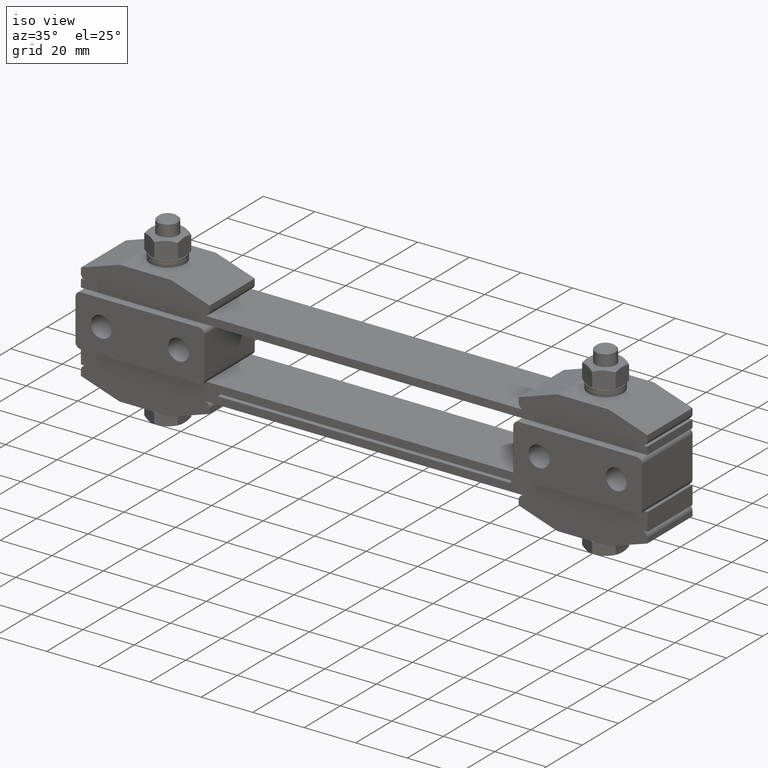
[diagram: clean part render]
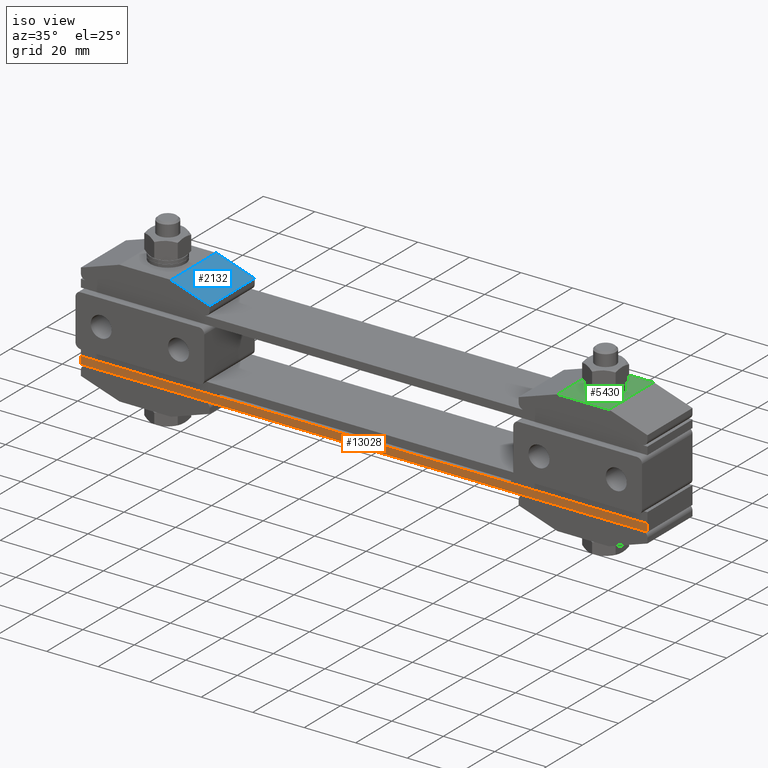
[diagram: same view with three faces highlighted in distinct colors, each labeled with its STEP entity id]
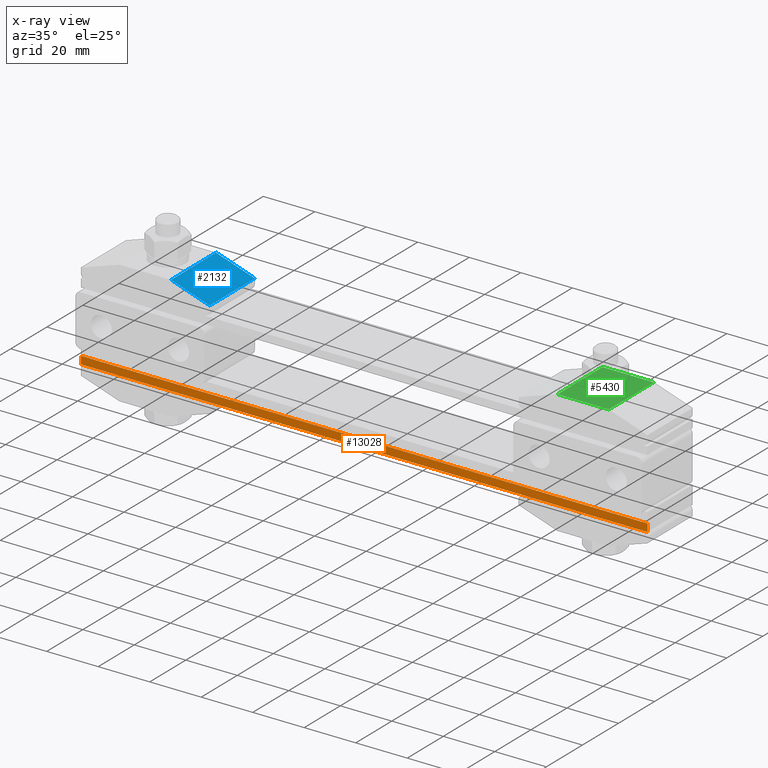
[diagram: x-ray of the same camera — body ghosted, the three highlighted faces saturated]
A machine part, iso view with three faces highlighted in distinct colors.
The next image is the same camera in x-ray (body ghosted, the three faces saturated) — at least one of them is partly hidden behind the body in this view.
Their STEP definitions:

[orange] entity #13028 — the highlighted planar face has unit normal (0, 1, 0).
#28 = EDGE_CURVE ( 'NONE', #342, #13408, #14852, .T. ) ;
#342 = VERTEX_POINT ( 'NONE', #9431 ) ;
#737 = FACE_OUTER_BOUND ( 'NONE', #19095, .T. ) ;
#5705 = DIRECTION ( 'NONE',  ( 1.000000000000000000, 0.0000000000000000000, 0.0000000000000000000 ) ) ;
#6247 = CARTESIAN_POINT ( 'NONE',  ( -110.0000000000000000, -12.50000000000000000, -1.000000000000000000 ) ) ;
#6395 = LINE ( 'NONE', #12294, #20217 ) ;
#7238 = DIRECTION ( 'NONE',  ( 0.0000000000000000000, 0.0000000000000000000, -1.000000000000000000 ) ) ;
#7967 = PLANE ( 'NONE',  #11596 ) ;
#9431 = CARTESIAN_POINT ( 'NONE',  ( -110.0000000000000000, -12.50000000000000000, -4.000000000000000000 ) ) ;
#9508 = ORIENTED_EDGE ( 'NONE', *, *, #12227, .F. ) ;
#9750 = DIRECTION ( 'NONE',  ( 0.0000000000000000000, 0.0000000000000000000, 1.000000000000000000 ) ) ;
#10822 = ORIENTED_EDGE ( 'NONE', *, *, #28, .T. ) ;
#10834 = CARTESIAN_POINT ( 'NONE',  ( -110.0000000000000000, -12.50000000000000000, -4.000000000000000000 ) ) ;
#11047 = LINE ( 'NONE', #12089, #13459 ) ;
#11396 = CARTESIAN_POINT ( 'NONE',  ( 110.0000000000000000, -12.50000000000000000, -1.000000000000000000 ) ) ;
#11596 = AXIS2_PLACEMENT_3D ( 'NONE', #6247, #19912, #9750 ) ;
#11732 = VERTEX_POINT ( 'NONE', #11396 ) ;
#12089 = CARTESIAN_POINT ( 'NONE',  ( -110.0000000000000000, -12.50000000000000000, -1.000000000000000000 ) ) ;
#12227 = EDGE_CURVE ( 'NONE', #11732, #13408, #6395, .T. ) ;
#12294 = CARTESIAN_POINT ( 'NONE',  ( 110.0000000000000000, -12.50000000000000000, -1.000000000000000000 ) ) ;
#12995 = CARTESIAN_POINT ( 'NONE',  ( 110.0000000000000000, -12.50000000000000000, -4.000000000000000000 ) ) ;
#13028 = ADVANCED_FACE ( 'NONE', ( #737 ), #7967, .F. ) ;
#13408 = VERTEX_POINT ( 'NONE', #12995 ) ;
#13459 = VECTOR ( 'NONE', #13812, 1000.000000000000000 ) ;
#13514 = EDGE_CURVE ( 'NONE', #15402, #11732, #17492, .T. ) ;
#13812 = DIRECTION ( 'NONE',  ( 0.0000000000000000000, 0.0000000000000000000, -1.000000000000000000 ) ) ;
#14313 = VECTOR ( 'NONE', #5705, 1000.000000000000000 ) ;
#14777 = DIRECTION ( 'NONE',  ( 1.000000000000000000, 0.0000000000000000000, 0.0000000000000000000 ) ) ;
#14852 = LINE ( 'NONE', #10834, #14313 ) ;
#15402 = VERTEX_POINT ( 'NONE', #20488 ) ;
#15496 = EDGE_CURVE ( 'NONE', #15402, #342, #11047, .T. ) ;
#15906 = ORIENTED_EDGE ( 'NONE', *, *, #15496, .T. ) ;
#17452 = ORIENTED_EDGE ( 'NONE', *, *, #13514, .F. ) ;
#17492 = LINE ( 'NONE', #18252, #21770 ) ;
#18252 = CARTESIAN_POINT ( 'NONE',  ( -110.0000000000000000, -12.50000000000000000, -1.000000000000000000 ) ) ;
#19095 = EDGE_LOOP ( 'NONE', ( #10822, #9508, #17452, #15906 ) ) ;
#19912 = DIRECTION ( 'NONE',  ( 0.0000000000000000000, 1.000000000000000000, 0.0000000000000000000 ) ) ;
#20217 = VECTOR ( 'NONE', #7238, 1000.000000000000000 ) ;
#20488 = CARTESIAN_POINT ( 'NONE',  ( -110.0000000000000000, -12.50000000000000000, -1.000000000000000000 ) ) ;
#21770 = VECTOR ( 'NONE', #14777, 1000.000000000000000 ) ;

[blue] entity #2132 — the highlighted planar face has unit normal (-0.3162, 0, -0.9487).
#475 = VERTEX_POINT ( 'NONE', #11949 ) ;
#484 = VERTEX_POINT ( 'NONE', #18549 ) ;
#670 = CARTESIAN_POINT ( 'NONE',  ( -75.00000000000000000, -14.00000000000030000, 35.00000000000000000 ) ) ;
#1447 = ORIENTED_EDGE ( 'NONE', *, *, #15528, .F. ) ;
#1583 = CARTESIAN_POINT ( 'NONE',  ( -58.79999999999999700, 12.49999999999979900, 29.60000000000000100 ) ) ;
#2132 = ADVANCED_FACE ( 'NONE', ( #5427 ), #19398, .F. ) ;
#2474 = DIRECTION ( 'NONE',  ( -0.9486832980505137700, 7.162100275896490800E-015, 0.3162277660168380000 ) ) ;
#3395 = ORIENTED_EDGE ( 'NONE', *, *, #21847, .F. ) ;
#4438 = LINE ( 'NONE', #1583, #17772 ) ;
#5427 = FACE_OUTER_BOUND ( 'NONE', #17424, .T. ) ;
#5996 = VECTOR ( 'NONE', #2474, 999.9999999999998900 ) ;
#6098 = CARTESIAN_POINT ( 'NONE',  ( -75.00000000000000000, -12.50000000000030000, 35.00000000000000000 ) ) ;
#6404 = ORIENTED_EDGE ( 'NONE', *, *, #11156, .T. ) ;
#6665 = CARTESIAN_POINT ( 'NONE',  ( -60.00000000000000000, -14.00000000000041900, 30.00000000000000000 ) ) ;
#6976 = LINE ( 'NONE', #6665, #21060 ) ;
#7327 = VERTEX_POINT ( 'NONE', #18130 ) ;
#7479 = CARTESIAN_POINT ( 'NONE',  ( -58.79999999999999700, -12.50000000000042100, 29.60000000000000100 ) ) ;
#7681 = DIRECTION ( 'NONE',  ( -0.3162277660168380000, 2.387366758632165100E-015, -0.9486832980505138800 ) ) ;
#9446 = VECTOR ( 'NONE', #11006, 1000.000000000000000 ) ;
#11006 = DIRECTION ( 'NONE',  ( -7.716050021144872700E-015, 1.000000000000000000, 0.0000000000000000000 ) ) ;
#11156 = EDGE_CURVE ( 'NONE', #20727, #484, #6976, .T. ) ;
#11182 = CARTESIAN_POINT ( 'NONE',  ( -60.00000000000000000, -12.50000000000042100, 30.00000000000000000 ) ) ;
#11874 = DIRECTION ( 'NONE',  ( -7.716050021144872700E-015, 1.000000000000000000, 0.0000000000000000000 ) ) ;
#11949 = CARTESIAN_POINT ( 'NONE',  ( -75.00000000000000000, 12.50000000000000000, 35.00000000000000000 ) ) ;
#12917 = LINE ( 'NONE', #7479, #5996 ) ;
#13679 = EDGE_CURVE ( 'NONE', #475, #484, #4438, .T. ) ;
#13980 = LINE ( 'NONE', #6098, #9446 ) ;
#15528 = EDGE_CURVE ( 'NONE', #7327, #475, #13980, .T. ) ;
#16283 = ORIENTED_EDGE ( 'NONE', *, *, #13679, .F. ) ;
#17424 = EDGE_LOOP ( 'NONE', ( #6404, #16283, #1447, #3395 ) ) ;
#17772 = VECTOR ( 'NONE', #18766, 999.9999999999998900 ) ;
#17886 = AXIS2_PLACEMENT_3D ( 'NONE', #670, #7681, #19543 ) ;
#18130 = CARTESIAN_POINT ( 'NONE',  ( -75.00000000000000000, -12.50000000000030000, 35.00000000000000000 ) ) ;
#18549 = CARTESIAN_POINT ( 'NONE',  ( -60.00000000000000000, 12.49999999999979900, 30.00000000000000000 ) ) ;
#18766 = DIRECTION ( 'NONE',  ( 0.9486832980505137700, -7.162100275896490800E-015, -0.3162277660168380000 ) ) ;
#19398 = PLANE ( 'NONE',  #17886 ) ;
#19543 = DIRECTION ( 'NONE',  ( -0.9486832980505138800, 7.162100275896490800E-015, 0.3162277660168380000 ) ) ;
#20727 = VERTEX_POINT ( 'NONE', #11182 ) ;
#21060 = VECTOR ( 'NONE', #11874, 1000.000000000000000 ) ;
#21847 = EDGE_CURVE ( 'NONE', #20727, #7327, #12917, .T. ) ;

[green] entity #5430 — the highlighted planar face has unit normal (0, 0, -1).
#282 = DIRECTION ( 'NONE',  ( -1.000000000000000000, 7.605027718682339700E-015, 0.0000000000000000000 ) ) ;
#528 = DIRECTION ( 'NONE',  ( 0.0000000000000000000, 0.0000000000000000000, -1.000000000000000000 ) ) ;
#584 = ORIENTED_EDGE ( 'NONE', *, *, #17001, .T. ) ;
#681 = CARTESIAN_POINT ( 'NONE',  ( 85.00000000000000000, -1.008308020411520100E-014, 35.00000000000000000 ) ) ;
#745 = AXIS2_PLACEMENT_3D ( 'NONE', #681, #528, #10808 ) ;
#784 = VERTEX_POINT ( 'NONE', #21224 ) ;
#1667 = ORIENTED_EDGE ( 'NONE', *, *, #13773, .F. ) ;
#1964 = DIRECTION ( 'NONE',  ( -1.000000000000000000, 7.605027718682350700E-015, 0.0000000000000000000 ) ) ;
#2409 = DIRECTION ( 'NONE',  ( -1.000000000000000000, 7.605027718682350700E-015, 0.0000000000000000000 ) ) ;
#2983 = VERTEX_POINT ( 'NONE', #6882 ) ;
#3028 = VERTEX_POINT ( 'NONE', #5015 ) ;
#3641 = VECTOR ( 'NONE', #10380, 1000.000000000000000 ) ;
#3768 = DIRECTION ( 'NONE',  ( -7.494005416219831900E-015, 1.000000000000000000, 0.0000000000000000000 ) ) ;
#3841 = CARTESIAN_POINT ( 'NONE',  ( 85.00000000000000000, -1.008308020411520100E-014, 35.00000000000000000 ) ) ;
#4942 = EDGE_LOOP ( 'NONE', ( #16431, #584 ) ) ;
#5015 = CARTESIAN_POINT ( 'NONE',  ( 95.00000000000000000, -12.50000000000020100, 35.00000000000000000 ) ) ;
#5430 = ADVANCED_FACE ( 'NONE', ( #14978, #12577 ), #5847, .F. ) ;
#5847 = PLANE ( 'NONE',  #6122 ) ;
#6122 = AXIS2_PLACEMENT_3D ( 'NONE', #17754, #11053, #2409 ) ;
#6312 = CARTESIAN_POINT ( 'NONE',  ( 89.10000000000000900, -4.076158866306237900E-014, 35.00000000000000000 ) ) ;
#6882 = CARTESIAN_POINT ( 'NONE',  ( 75.00000000000000000, 12.50000000000016000, 35.00000000000000000 ) ) ;
#8205 = LINE ( 'NONE', #13808, #3641 ) ;
#8564 = EDGE_CURVE ( 'NONE', #3028, #784, #15086, .T. ) ;
#8608 = CIRCLE ( 'NONE', #11540, 4.100000000000006800 ) ;
#9621 = CARTESIAN_POINT ( 'NONE',  ( 75.00000000000000000, -12.50000000000000000, 35.00000000000000000 ) ) ;
#9932 = LINE ( 'NONE', #11155, #21104 ) ;
#9955 = EDGE_CURVE ( 'NONE', #2983, #14045, #9932, .T. ) ;
#10380 = DIRECTION ( 'NONE',  ( 1.000000000000000000, -7.605027718682350700E-015, 0.0000000000000000000 ) ) ;
#10479 = DIRECTION ( 'NONE',  ( 0.0000000000000000000, 0.0000000000000000000, -1.000000000000000000 ) ) ;
#10808 = DIRECTION ( 'NONE',  ( -1.000000000000000000, 7.605027718682339700E-015, 0.0000000000000000000 ) ) ;
#11053 = DIRECTION ( 'NONE',  ( 0.0000000000000000000, 0.0000000000000000000, -1.000000000000000000 ) ) ;
#11155 = CARTESIAN_POINT ( 'NONE',  ( 75.00000000000000000, -12.50000000000000000, 35.00000000000000000 ) ) ;
#11540 = AXIS2_PLACEMENT_3D ( 'NONE', #3841, #10479, #282 ) ;
#12121 = CARTESIAN_POINT ( 'NONE',  ( 95.00000000000000000, -12.50000000000020100, 35.00000000000000000 ) ) ;
#12179 = CARTESIAN_POINT ( 'NONE',  ( 110.0000000000000000, -12.50000000000032000, 35.00000000000000000 ) ) ;
#12577 = FACE_OUTER_BOUND ( 'NONE', #15836, .T. ) ;
#13773 = EDGE_CURVE ( 'NONE', #2983, #784, #8205, .T. ) ;
#13808 = CARTESIAN_POINT ( 'NONE',  ( 110.0000000000000000, 12.50000000000000000, 35.00000000000000000 ) ) ;
#13887 = EDGE_CURVE ( 'NONE', #20648, #15710, #16688, .T. ) ;
#14045 = VERTEX_POINT ( 'NONE', #9621 ) ;
#14978 = FACE_BOUND ( 'NONE', #4942, .T. ) ;
#15086 = LINE ( 'NONE', #12121, #17463 ) ;
#15300 = LINE ( 'NONE', #12179, #19773 ) ;
#15459 = ORIENTED_EDGE ( 'NONE', *, *, #9955, .T. ) ;
#15710 = VERTEX_POINT ( 'NONE', #6312 ) ;
#15836 = EDGE_LOOP ( 'NONE', ( #18593, #18444, #1667, #15459 ) ) ;
#16062 = EDGE_CURVE ( 'NONE', #3028, #14045, #15300, .T. ) ;
#16431 = ORIENTED_EDGE ( 'NONE', *, *, #13887, .T. ) ;
#16688 = CIRCLE ( 'NONE', #745, 4.100000000000006800 ) ;
#17001 = EDGE_CURVE ( 'NONE', #15710, #20648, #8608, .T. ) ;
#17463 = VECTOR ( 'NONE', #3768, 1000.000000000000000 ) ;
#17754 = CARTESIAN_POINT ( 'NONE',  ( 110.0000000000000000, -12.50000000000032000, 35.00000000000000000 ) ) ;
#17836 = DIRECTION ( 'NONE',  ( 7.494005416219831900E-015, -1.000000000000000000, 0.0000000000000000000 ) ) ;
#17883 = CARTESIAN_POINT ( 'NONE',  ( 80.90000000000000600, 2.109753344248244300E-014, 35.00000000000000000 ) ) ;
#18444 = ORIENTED_EDGE ( 'NONE', *, *, #8564, .T. ) ;
#18593 = ORIENTED_EDGE ( 'NONE', *, *, #16062, .F. ) ;
#19773 = VECTOR ( 'NONE', #1964, 1000.000000000000000 ) ;
#20648 = VERTEX_POINT ( 'NONE', #17883 ) ;
#21104 = VECTOR ( 'NONE', #17836, 1000.000000000000000 ) ;
#21224 = CARTESIAN_POINT ( 'NONE',  ( 95.00000000000000000, 12.50000000000000000, 35.00000000000000000 ) ) ;